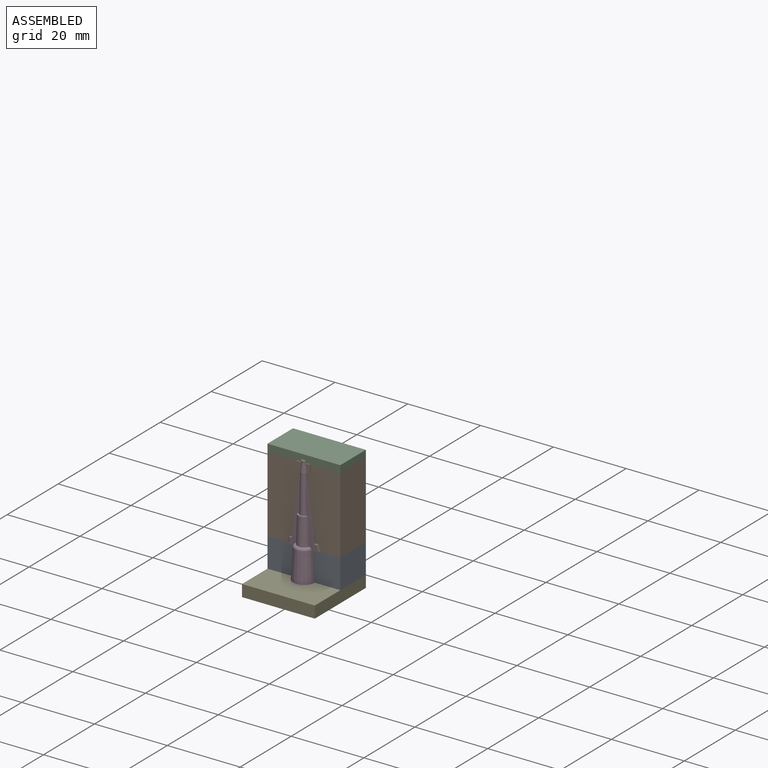
[diagram: assembled view]
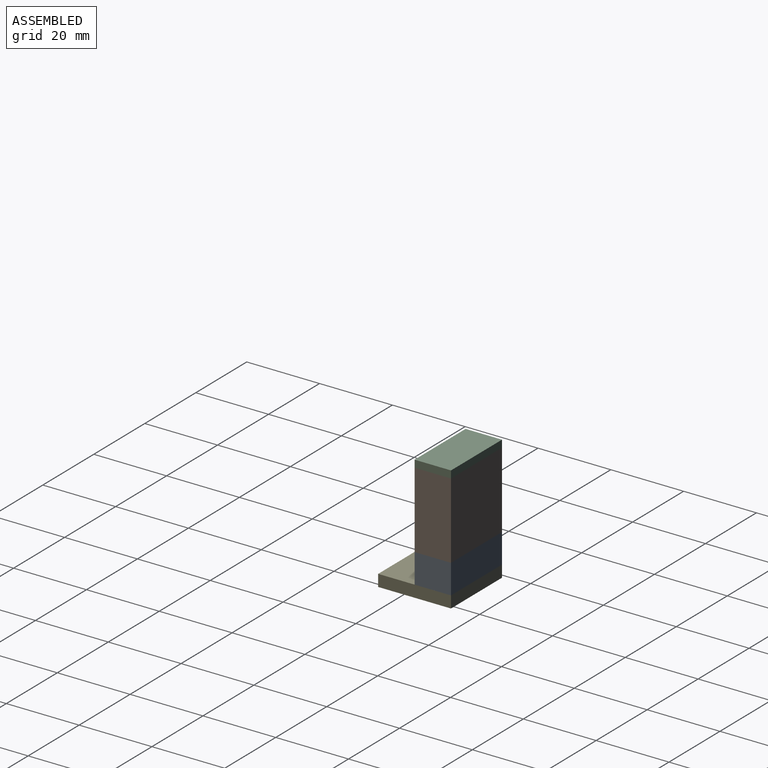
[diagram: assembled view, second angle]
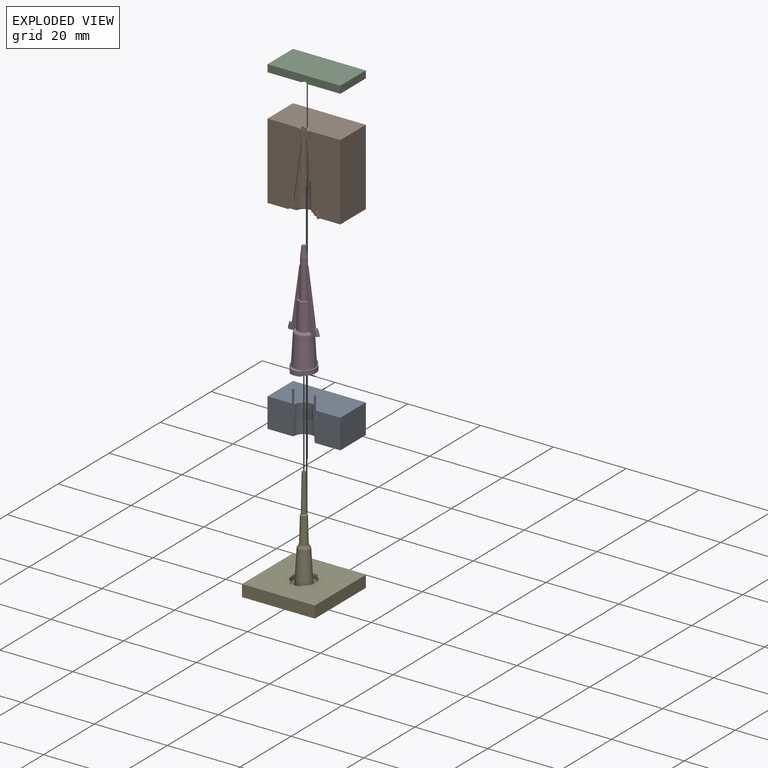
[diagram: exploded view]
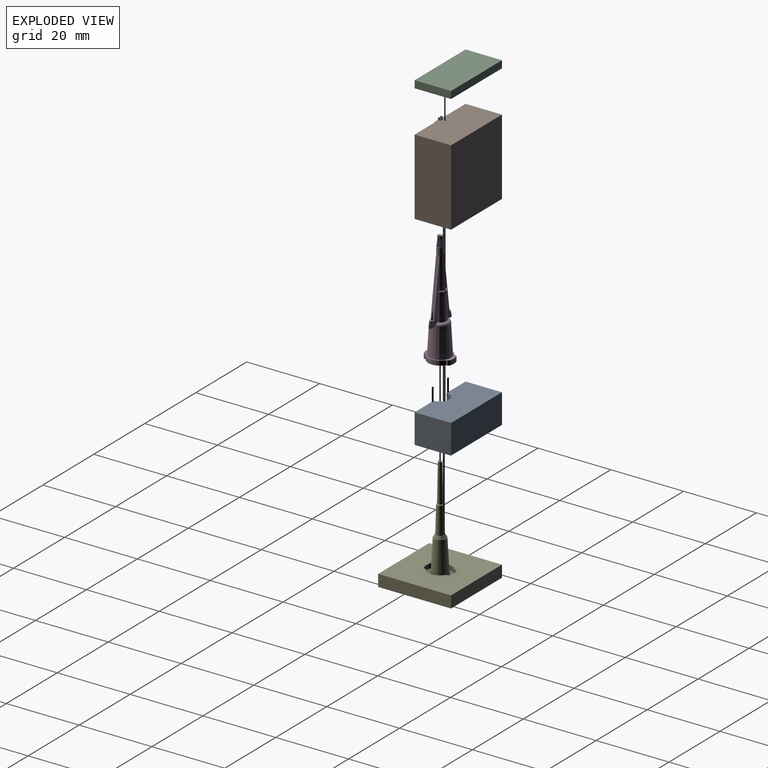
[diagram: exploded view, second angle]
ASSEMBLY  parts=5 mates=3
PART A: 12 faces, bbox 20x10x11.8 mm
  f0: plane 20x10mm, normal (0,0,1), area 189.9mm2, adj f1,f3,f4,f5,f7,f9,f10,f11
  f1: plane 10x8.09mm, normal (-1,0,0), area 80.9mm2, adj f0,f2,f9,f11
  f2: plane 20x10mm, normal (0,0,-1), area 186.3mm2, adj f1,f3,f4,f9,f10,f11
  f3: plane 10x8.09mm, normal (1,0,0), area 80.9mm2, adj f0,f2,f9,f10
  f4: cone r=2.5mm half-angle=3.2deg, axis (0,0,-1), area 69.4mm2, adj f0,f2,f10,f11
  f5: cylinder r=0.28mm len=3.69mm, axis (0,0,-1), area 3.2mm2, adj f0,f6,f11
  f6: plane 0.55x0.28mm, normal (0,0,1), area 0.1mm2, adj f5,f11
  f7: cylinder r=0.28mm len=3.69mm, axis (0,0,-1), area 3.2mm2, adj f0,f8,f10
  f8: plane 0.55x0.28mm, normal (0,0,1), area 0.1mm2, adj f7,f10
  f9: plane 20x8.09mm, normal (0,1,0), area 161.8mm2, adj f0,f1,f2,f3
  f10: plane 11.78x7.5mm, normal (0,-1,0), area 60.9mm2, adj f0,f2,f3,f4,f7,f8
  f11: plane 11.78x7.5mm, normal (0,-1,0), area 60.9mm2, adj f0,f1,f2,f4,f5,f6
PART B: 44 faces, bbox 20.1x10.6x21.7 mm
  f0: plane 20x10.2mm, normal (0,0,1), area 199.9mm2, adj f2,f3,f8,f9,f23,f25,f34,f35
  f1: plane 0.5x0.4mm, normal (0,0,1), area 0.2mm2, adj f33,f35,f38,f41
  f2: cone r=0.87mm half-angle=5.8deg, axis (0,0,-1), area 4.5mm2, adj f0,f3,f7,f25,f33,f37
  f3: plane 20.94x9.14mm, normal (0,-1,0), area 166.3mm2, adj f0,f2,f4,f6,f7,f9,f10,f11
  f4: plane 0.98x0.5mm, normal (0,0,-1), area 0.4mm2, adj f3,f11,f16,f24,f31,f32
  f5: plane 16.75x3.26mm, normal (0,-1,0), area 15.1mm2, adj f6,f7,f12,f13,f14,f19,f20,f21
  f6: plane 20x10.5mm, normal (0,0,-1), area 188.6mm2, adj f3,f5,f8,f9,f21,f23,f24,f25
  f7: cone r=0.87mm half-angle=1deg, axis (0,0,-1), area 22.6mm2, adj f2,f3,f5,f10,f12,f22,f24,f25
  f8: plane 20.94x10mm, normal (-1,0,0), area 209.4mm2, adj f0,f6,f23,f25
  f9: plane 20.94x10mm, normal (1,0,0), area 209.4mm2, adj f0,f3,f6,f23
  f10: plane 0.5x0.15mm, normal (0,0,-1), area 0mm2, adj f3,f7,f11,f24
  f11: plane 15x2.11mm, normal (-0.99,0,-0.14), area 7.1mm2, adj f3,f4,f10,f15,f16,f24
  f12: plane 0.5x0.15mm, normal (0,0,-1), area 0mm2, adj f5,f7,f13,f25
  f13: plane 15x2.11mm, normal (0.99,0,-0.14), area 7.1mm2, adj f5,f12,f14,f17,f18,f25
  f14: plane 0.98x0.5mm, normal (0,0,-1), area 0.4mm2, adj f5,f13,f18,f25,f26,f27
  f15: plane 0.55x0.28mm, normal (0,0,-1), area 0.1mm2, adj f3,f11,f16
  f16: cylinder r=0.28mm len=2.03mm, axis (0,0,-1), area 1.2mm2, adj f3,f4,f11,f15
  f17: plane 0.55x0.28mm, normal (0,0,-1), area 0.1mm2, adj f13,f18,f25
  f18: cylinder r=0.28mm len=2.03mm, axis (0,0,-1), area 1.2mm2, adj f13,f14,f17,f25
  f19: cone r=1.55mm half-angle=1.5deg, axis (0,0,-1), area 31.2mm2, adj f5,f20,f22,f24
  f20: plane 3.46x1.3mm, normal (0,0,-1), area 0.2mm2, adj f5,f19,f21,f24
  f21: torus R=1.8mm, axis (0,0,1), area 6.3mm2, adj f5,f6,f20,f24
  f22: plane 2.93x1.05mm, normal (0,0,-1), area 1.5mm2, adj f5,f7,f19,f24
  f23: plane 20.94x20mm, normal (0,1,0), area 418.7mm2, adj f0,f6,f8,f9
  f24: plane 16.75x3.26mm, normal (0,-1,0), area 15.1mm2, adj f4,f6,f7,f10,f11,f19,f20,f21
  f25: plane 20.94x9.14mm, normal (0,-1,0), area 166.4mm2, adj f0,f2,f6,f7,f8,f12,f13,f14
  f26: plane 1.66x0.6mm, normal (0.81,0.54,-0.21), area 0.5mm2, adj f6,f14,f25,f27
  f27: plane 1.66x0.93mm, normal (0.44,-0.89,-0.12), area 0.9mm2, adj f5,f6,f14,f26
  f28: plane 0.5x0.5mm, normal (0,0,1), area 0.2mm2, adj f3,f29,f30,f31
  f29: plane 1.66x0.5mm, normal (0.97,0,0.25), area 0.9mm2, adj f3,f6,f28,f30
  f30: plane 1.66x0.93mm, normal (0,-1,0), area 0.8mm2, adj f6,f28,f29,f31
  f31: plane 1.66x0.93mm, normal (-0.81,0.54,-0.21), area 1.5mm2, adj f4,f6,f28,f30,f32
  f32: plane 1.66x0.93mm, normal (-0.44,-0.89,-0.12), area 0.9mm2, adj f4,f6,f24,f31
  f33: plane 2.81x1.68mm, normal (0,1,0), area 3.6mm2, adj f1,f2,f37,f38,f39,f40,f41,f42
  f34: plane 2.2x0.2mm, normal (-1,0,0), area 0.4mm2, adj f0,f25,f35,f37
  f35: plane 3.8x2.8mm, normal (0,-1,0), area 8.8mm2, adj f0,f1,f34,f36,f37,f38,f39,f40
  f36: plane 2.2x0.2mm, normal (1,0,0), area 0.4mm2, adj f0,f3,f35,f37
  f37: plane 3.8x0.4mm, normal (0,0,-1), area 1.1mm2, adj f2,f3,f25,f33,f34,f35,f36
  f38: plane 0.6x0.4mm, normal (1,0,0), area 0.2mm2, adj f1,f33,f35,f40
  f39: cylinder r=0.63mm len=0.6mm, axis (0,0,-1), area 0.2mm2, adj f0,f33,f35,f40
  f40: plane 0.4x0.38mm, normal (0,0,1), area 0.1mm2, adj f33,f35,f38,f39
  f41: plane 0.6x0.4mm, normal (-1,0,0), area 0.2mm2, adj f1,f33,f35,f43
  f42: cylinder r=0.63mm len=0.6mm, axis (0,0,-1), area 0.2mm2, adj f0,f33,f35,f43
  f43: plane 0.4x0.38mm, normal (0,0,1), area 0.1mm2, adj f33,f35,f41,f42
PART C: 8 faces, bbox 20x10x2 mm
  f0: plane 10x2mm, normal (-1,0,0), area 20mm2, adj f2,f3,f6,f7
  f1: plane 10x2mm, normal (1,0,0), area 20mm2, adj f2,f3,f6,f7
  f2: plane 20x10mm, normal (0,0,1), area 200mm2, adj f0,f1,f6,f7
  f3: plane 20x10mm, normal (0,0,-1), area 199.4mm2, adj f0,f1,f4,f6,f7
  f4: cylinder r=0.63mm len=1.27mm, axis (0,0,-1), area 1.2mm2, adj f3,f5,f7
  f5: plane 1.27x0.63mm, normal (0,0,-1), area 0.6mm2, adj f4,f7
  f6: plane 20x2mm, normal (0,1,0), area 40mm2, adj f0,f1,f2,f3
  f7: plane 20x2mm, normal (0,-1,0), area 39.2mm2, adj f0,f1,f2,f3,f4,f5
PART D: 72 faces, bbox 9.4x7.7x31 mm
  f0: plane 0.5x0.11mm, normal (0,0,1), area 0mm2, adj f7,f54,f62,f68
  f1: plane 0.5x0.11mm, normal (0,0,1), area 0mm2, adj f5,f7,f60,f67
  f2: plane 0.5x0.11mm, normal (0,0,1), area 0mm2, adj f6,f7,f56,f67
  f3: bspline ~8.24x2.24mm, area 1.2mm2, adj f4,f6,f57,f66
  f4: bspline ~8.24x2.24mm, area 1.2mm2, adj f3,f5,f57,f66
  f5: plane 16.75x3.21mm, normal (0,1,0), area 14.6mm2, adj f1,f4,f9,f10,f18,f57,f58,f59
  f6: plane 16.76x3.22mm, normal (0,-1,0), area 14.7mm2, adj f2,f3,f8,f19,f20,f56,f57,f58
  f7: cone r=0.87mm half-angle=1deg, axis (0,0,-1), area 47.1mm2, adj f0,f1,f2,f11,f15,f51,f56,f59
  f8: cone r=1.55mm half-angle=1.5deg, axis (0,0,-1), area 31.8mm2, adj f6,f11,f19,f53,f58,f64
  f9: plane 3.46x1.3mm, normal (0,0,1), area 0.2mm2, adj f5,f10,f18,f54
  f10: torus R=1.8mm, axis (0,0,1), area 6.3mm2, adj f5,f9,f21,f54
  f11: plane 3.1x3.02mm, normal (0,0,1), area 4mm2, adj f7,f8,f18,f58,f64
  f12: cone r=0.02mm half-angle=6deg, axis (0,0,-1), area 3.7mm2, adj f16,f31,f43,f44,f45,f47,f48,f49
  f13: cylinder r=0.63mm len=1.19mm, axis (0,0,1), area 0.9mm2, adj f15,f32,f44,f48
  f14: cylinder r=0.63mm len=1.19mm, axis (0,0,1), area 0.9mm2, adj f15,f32,f45,f49
  f15: cone r=0.63mm half-angle=6deg, axis (0,0,-1), area 9mm2, adj f7,f13,f14,f43,f44,f45,f47,f48
  f16: plane 0.55x0.5mm, normal (0,0,-1), area 0.2mm2, adj f12,f44,f45,f46,f48,f49,f50
  f17: cylinder r=3.25mm len=5.54mm, axis (0,0,1), area 8.3mm2, adj f22,f24,f33,f39
  f18: cone r=1.55mm half-angle=1.5deg, axis (0,0,-1), area 31.8mm2, adj f5,f9,f11,f54,f58,f64
  f19: plane 3.46x1.3mm, normal (0,0,1), area 0.2mm2, adj f6,f8,f20,f53
  f20: torus R=1.8mm, axis (0,0,1), area 6.3mm2, adj f6,f19,f21,f53
  f21: cone r=2.5mm half-angle=3.2deg, axis (0,0,-1), area 138.7mm2, adj f10,f20,f22,f57,f65
  f22: plane 7.65x6.5mm, normal (0,0,1), area 9.7mm2, adj f17,f21,f23,f33,f34,f35,f36,f37
  f23: cylinder r=3.25mm len=5.54mm, axis (0,0,1), area 8.3mm2, adj f22,f24,f34,f38
  f24: plane 7.65x6.5mm, normal (0,0,-1), area 22.3mm2, adj f17,f23,f25,f33,f34,f35,f36,f37
  f25: cone r=1.65mm half-angle=3.2deg, axis (0,0,-1), area 112.2mm2, adj f24,f26
  f26: plane 3.3x3.3mm, normal (0,0,-1), area 1.5mm2, adj f25,f27
  f27: cone r=1.25mm half-angle=20deg, axis (0,0,-1), area 6.1mm2, adj f26,f28
  f28: plane 2.51x2.51mm, normal (0,0,-1), area 1.1mm2, adj f27,f29
  f29: cone r=0.9mm half-angle=1.5deg, axis (0,0,-1), area 46.5mm2, adj f28,f30
  f30: cone r=0.7mm half-angle=45deg, axis (0,0,-1), area 1.5mm2, adj f29,f31
  f31: cone r=0.52mm half-angle=1deg, axis (0,0,-1), area 39.5mm2, adj f12,f30
  f32: plane 1.25x1.19mm, normal (0,0,1), area 0.9mm2, adj f13,f14,f44,f45,f46,f48,f49,f50
  f33: plane 1.25x0.12mm, normal (1,0,0), area 0.1mm2, adj f17,f22,f24,f35
  f34: plane 1.25x0.12mm, normal (-1,0,0), area 0.1mm2, adj f22,f23,f24,f36
  f35: cylinder r=0.8mm len=1.25mm, axis (0,0,-1), area 1.3mm2, adj f22,f24,f33,f37
  f36: cylinder r=0.8mm len=1.25mm, axis (0,0,-1), area 1.3mm2, adj f22,f24,f34,f37
  f37: cylinder r=3.82mm len=2.28mm, axis (0,0,-1), area 2.9mm2, adj f22,f24,f35,f36
  f38: plane 1.25x0.12mm, normal (-1,0,0), area 0.1mm2, adj f22,f23,f24,f40
  f39: plane 1.25x0.12mm, normal (1,0,0), area 0.1mm2, adj f17,f22,f24,f41
  f40: cylinder r=0.8mm len=1.25mm, axis (0,0,-1), area 1.3mm2, adj f22,f24,f38,f42
  f41: cylinder r=0.8mm len=1.25mm, axis (0,0,-1), area 1.3mm2, adj f22,f24,f39,f42
  f42: cylinder r=3.82mm len=2.28mm, axis (0,0,-1), area 2.9mm2, adj f22,f24,f40,f41
  f43: plane 0.4x0.39mm, normal (0,0,1), area 0.1mm2, adj f12,f15,f44,f45
  f44: plane 2.86x0.7mm, normal (0,-1,0), area 1mm2, adj f12,f13,f15,f16,f32,f43,f46
  f45: plane 2.86x0.7mm, normal (0,1,0), area 1mm2, adj f12,f14,f15,f16,f32,f43,f46
  f46: plane 0.6x0.4mm, normal (-1,0,0), area 0.2mm2, adj f16,f32,f44,f45
  f47: plane 0.4x0.39mm, normal (0,0,1), area 0.1mm2, adj f12,f15,f48,f49
  f48: plane 2.86x0.7mm, normal (0,-1,0), area 1mm2, adj f12,f13,f15,f16,f32,f47,f50
  f49: plane 2.86x0.7mm, normal (0,1,0), area 1mm2, adj f12,f14,f15,f16,f32,f47,f50
  f50: plane 0.6x0.4mm, normal (1,0,0), area 0.2mm2, adj f16,f32,f48,f49
  f51: plane 0.5x0.11mm, normal (0,0,1), area 0mm2, adj f7,f53,f61,f68
  f52: bspline ~8.24x2.24mm, area 1.2mm2, adj f53,f55,f65,f69
  f53: plane 16.75x3.21mm, normal (0,-1,0), area 14.7mm2, adj f8,f19,f20,f51,f52,f61,f63,f64
  f54: plane 16.76x3.22mm, normal (0,1,0), area 14.7mm2, adj f0,f9,f10,f18,f55,f62,f63,f64
  f55: bspline ~8.24x2.24mm, area 1.2mm2, adj f52,f54,f65,f69
  f56: plane 8.49x0.15mm, normal (1,0,-0.02), area 0.4mm2, adj f2,f6,f7,f59
  f57: plane 1.97x1mm, normal (0,0,-1), area 1.4mm2, adj f3,f4,f5,f6,f21,f71
  f58: plane 3.9x1.01mm, normal (1,0,-0.02), area 0.5mm2, adj f5,f6,f8,f11,f18,f59
  f59: plane 1x0.57mm, normal (0,0,-1), area 0.5mm2, adj f5,f6,f7,f56,f58,f60
  f60: plane 8.49x0.15mm, normal (1,0,-0.02), area 0.4mm2, adj f1,f5,f7,f59
  f61: plane 8.49x0.15mm, normal (-1,0,-0.02), area 0.4mm2, adj f7,f51,f53,f63
  f62: plane 8.49x0.15mm, normal (-1,0,-0.02), area 0.4mm2, adj f0,f7,f54,f63
  f63: plane 1x0.57mm, normal (0,0,-1), area 0.5mm2, adj f7,f53,f54,f61,f62,f64
  f64: plane 3.9x1.01mm, normal (-1,0,-0.02), area 0.5mm2, adj f8,f11,f18,f53,f54,f63
  f65: plane 1.97x1mm, normal (0,0,-1), area 1.4mm2, adj f21,f52,f53,f54,f55,f70
  f66: plane 1x0.98mm, normal (0,0,1), area 0.6mm2, adj f3,f4,f5,f6,f67,f71
  f67: plane 15x2.11mm, normal (-0.99,0,0.14), area 14.3mm2, adj f1,f2,f5,f6,f66,f71
  f68: plane 15x2.11mm, normal (0.99,0,0.14), area 14.3mm2, adj f0,f51,f53,f54,f69,f70
  f69: plane 1x0.98mm, normal (0,0,1), area 0.6mm2, adj f52,f53,f54,f55,f68,f70
  f70: cylinder r=0.28mm len=3.69mm, axis (0,0,1), area 4mm2, adj f65,f68,f69
  f71: cylinder r=0.28mm len=3.69mm, axis (0,0,1), area 4mm2, adj f57,f66,f67
PART E: 28 faces, bbox 20x20x30.1 mm
  f0: plane 20x3.25mm, normal (0,1,0), area 65mm2, adj f1,f3,f4,f5
  f1: plane 20x3.25mm, normal (-1,0,0), area 65mm2, adj f0,f2,f4,f5
  f2: plane 20x3.25mm, normal (0,-1,0), area 65mm2, adj f1,f3,f4,f5
  f3: plane 20x3.25mm, normal (1,0,0), area 65mm2, adj f0,f2,f4,f5
  f4: plane 20x20mm, normal (0,0,1), area 363mm2, adj f0,f1,f2,f3,f6,f7,f8,f9
  f5: plane 20x20mm, normal (0,0,-1), area 400mm2, adj f0,f1,f2,f3
  f6: cylinder r=3.25mm len=5.54mm, axis (0,0,1), area 8.3mm2, adj f4,f7,f17,f18
  f7: plane 1.25x0.12mm, normal (-1,0,0), area 0.1mm2, adj f4,f6,f8,f18
  f8: cylinder r=0.8mm len=1.25mm, axis (0,0,1), area 1.3mm2, adj f4,f7,f9,f18
  f9: cylinder r=3.82mm len=2.28mm, axis (0,0,1), area 2.9mm2, adj f4,f8,f10,f18
  f10: cylinder r=0.8mm len=1.25mm, axis (0,0,1), area 1.3mm2, adj f4,f9,f11,f18
  f11: plane 1.25x0.12mm, normal (1,0,0), area 0.1mm2, adj f4,f10,f12,f18
  f12: cylinder r=3.25mm len=5.54mm, axis (0,0,1), area 8.3mm2, adj f4,f11,f13,f18
  f13: plane 1.25x0.12mm, normal (1,0,0), area 0.1mm2, adj f4,f12,f14,f18
  f14: cylinder r=0.8mm len=1.25mm, axis (0,0,1), area 1.3mm2, adj f4,f13,f15,f18
  f15: cylinder r=3.82mm len=2.28mm, axis (0,0,1), area 2.9mm2, adj f4,f14,f16,f18
  f16: cylinder r=0.8mm len=1.25mm, axis (0,0,1), area 1.3mm2, adj f4,f15,f17,f18
  f17: plane 1.25x0.12mm, normal (-1,0,0), area 0.1mm2, adj f4,f6,f16,f18
  f18: plane 7.65x6.5mm, normal (0,0,1), area 22.3mm2, adj f6,f7,f8,f9,f10,f11,f12,f13
  f19: plane 1.01x1.01mm, normal (0,0,1), area 0.8mm2, adj f20
  f20: cone r=0.5mm half-angle=6deg, axis (0,0,-1), area 0.3mm2, adj f19,f21
  f21: cone r=0.52mm half-angle=1deg, axis (0,0,-1), area 39.5mm2, adj f20,f22
  f22: cone r=0.7mm half-angle=45deg, axis (0,0,-1), area 1.5mm2, adj f21,f23
  f23: cone r=0.9mm half-angle=1.5deg, axis (0,0,-1), area 46.5mm2, adj f22,f24
  f24: plane 2.51x2.51mm, normal (0,0,1), area 1.1mm2, adj f23,f25
  f25: cone r=1.25mm half-angle=20deg, axis (0,0,-1), area 6.1mm2, adj f24,f26
  f26: plane 3.3x3.3mm, normal (0,0,1), area 1.5mm2, adj f25,f27
  f27: cone r=1.65mm half-angle=3.2deg, axis (0,0,-1), area 112.2mm2, adj f18,f26
PLACE A t=(-4.49,0,4.38)mm
PLACE B t=(-4.49,0,12.47)mm
PLACE C t=(-4.49,0,33.4)mm
PLACE D t=(-4.49,0,3.13)mm
PLACE E t=(-4.49,0,3.13)mm
MATE fastened A.f2 <-> E.f4  axis (0,0,-1) through (5.51,10,4.38)mm
MATE fastened C.f3 <-> B.f0  axis (0,0,-1) through (-14.49,10,33.4)mm
MATE fastened D.f15 <-> E.f20  axis (0,0,1) through (-4.49,0,3.13)mm
